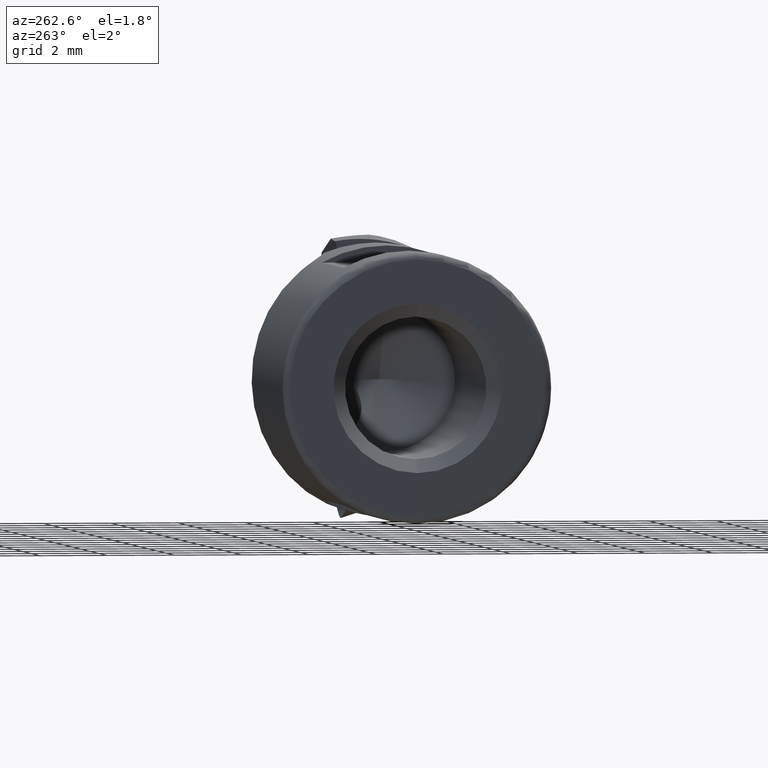
[diagram: clean part render]
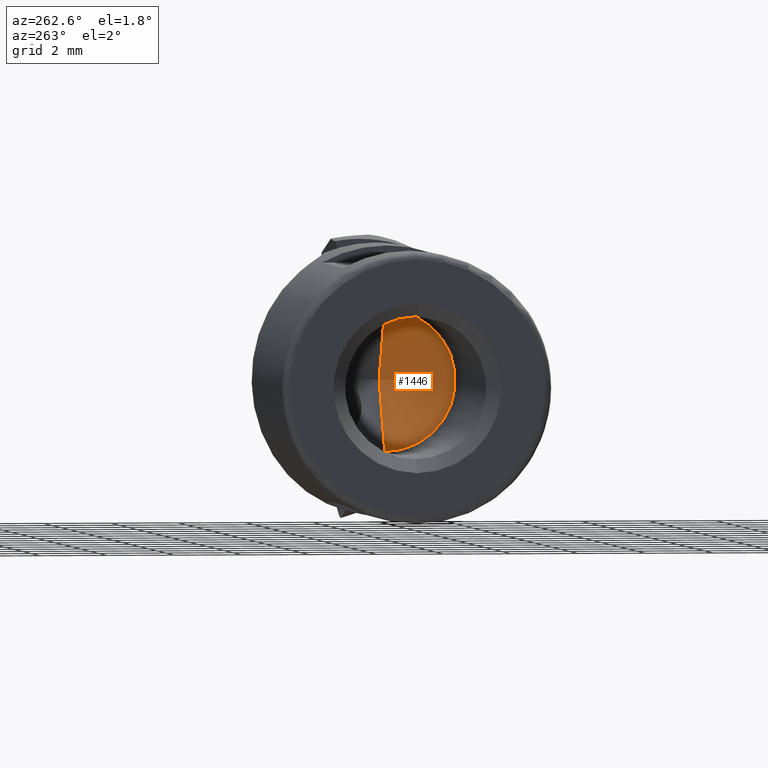
[diagram: same view with one face highlighted and labeled with its STEP entity id]
A machine part, auxiliary view. The second image highlights one B-rep face of the part: STEP entity #1446.
In plain terms, the highlighted conical surface has half-angle 59 deg.
Its self-contained STEP definition (entity closure, byte-faithful):
#254 = ORIENTED_EDGE ( 'NONE', *, *, #1893, .T. ) ;
#436 = VECTOR ( 'NONE', #3646, 1000.000000000000200 ) ;
#570 = DIRECTION ( 'NONE',  ( 0.0000000000000000000, 0.0000000000000000000, 1.000000000000000000 ) ) ;
#611 = DIRECTION ( 'NONE',  ( -0.5150380749100523800, 0.0000000000000000000, 0.8571673007021134400 ) ) ;
#626 = CARTESIAN_POINT ( 'NONE',  ( -10.49999999999999800, 0.0000000000000000000, 6.475000000000000500 ) ) ;
#801 = CARTESIAN_POINT ( 'NONE',  ( -10.49999999999999800, 0.0000000000000000000, 4.375000000000000000 ) ) ;
#1109 = CARTESIAN_POINT ( 'NONE',  ( -10.49999999999999800, 2.571758278209442000E-016, 2.274999999999999900 ) ) ;
#1184 = DIRECTION ( 'NONE',  ( 0.0000000000000000000, 0.0000000000000000000, 1.000000000000000000 ) ) ;
#1446 = ADVANCED_FACE ( 'NONE', ( #3733 ), #1696, .F. ) ;
#1650 = CARTESIAN_POINT ( 'NONE',  ( -10.49999999999999800, 0.0000000000000000000, 4.375000000000000000 ) ) ;
#1696 = CONICAL_SURFACE ( 'NONE', #1946, 2.100000000000000100, 1.029744258676656500 ) ;
#1893 = EDGE_CURVE ( 'NONE', #3756, #4002, #3226, .T. ) ;
#1946 = AXIS2_PLACEMENT_3D ( 'NONE', #1650, #3101, #570 ) ;
#1947 = EDGE_CURVE ( 'NONE', #4002, #2701, #4065, .T. ) ;
#2228 = EDGE_CURVE ( 'NONE', #3756, #2701, #4588, .T. ) ;
#2345 = ORIENTED_EDGE ( 'NONE', *, *, #2228, .F. ) ;
#2595 = ORIENTED_EDGE ( 'NONE', *, *, #1947, .T. ) ;
#2603 = EDGE_LOOP ( 'NONE', ( #2345, #254, #2595 ) ) ;
#2701 = VERTEX_POINT ( 'NONE', #626 ) ;
#2728 = CARTESIAN_POINT ( 'NONE',  ( -10.49999999999999800, 2.571758278209442000E-016, 2.274999999999999900 ) ) ;
#2742 = AXIS2_PLACEMENT_3D ( 'NONE', #801, #3357, #1184 ) ;
#2774 = CARTESIAN_POINT ( 'NONE',  ( -10.49999999999999800, 0.0000000000000000000, 6.475000000000000500 ) ) ;
#2952 = CARTESIAN_POINT ( 'NONE',  ( -9.238192700042127100, 0.0000000000000000000, 4.375000000000000000 ) ) ;
#3101 = DIRECTION ( 'NONE',  ( -1.000000000000000000, -0.0000000000000000000, -0.0000000000000000000 ) ) ;
#3226 = LINE ( 'NONE', #1109, #436 ) ;
#3357 = DIRECTION ( 'NONE',  ( -1.000000000000000000, -0.0000000000000000000, -0.0000000000000000000 ) ) ;
#3646 = DIRECTION ( 'NONE',  ( -0.5150380749100523800, 1.049727191138619900E-016, -0.8571673007021134400 ) ) ;
#3733 = FACE_OUTER_BOUND ( 'NONE', #2603, .T. ) ;
#3756 = VERTEX_POINT ( 'NONE', #2952 ) ;
#4002 = VERTEX_POINT ( 'NONE', #2728 ) ;
#4065 = CIRCLE ( 'NONE', #2742, 2.100000000000000100 ) ;
#4588 = LINE ( 'NONE', #2774, #4680 ) ;
#4680 = VECTOR ( 'NONE', #611, 1000.000000000000200 ) ;